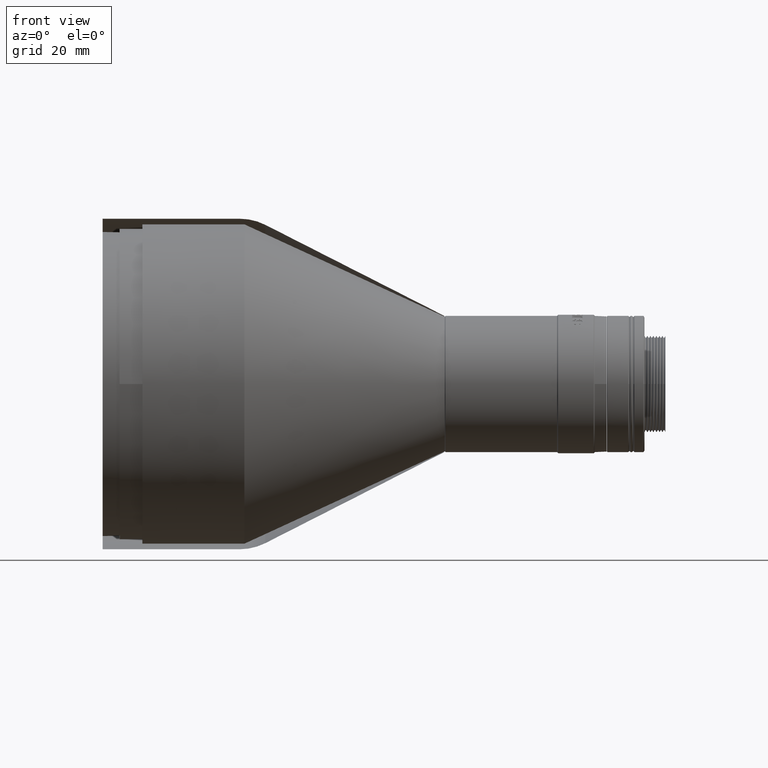
[diagram: clean part render]
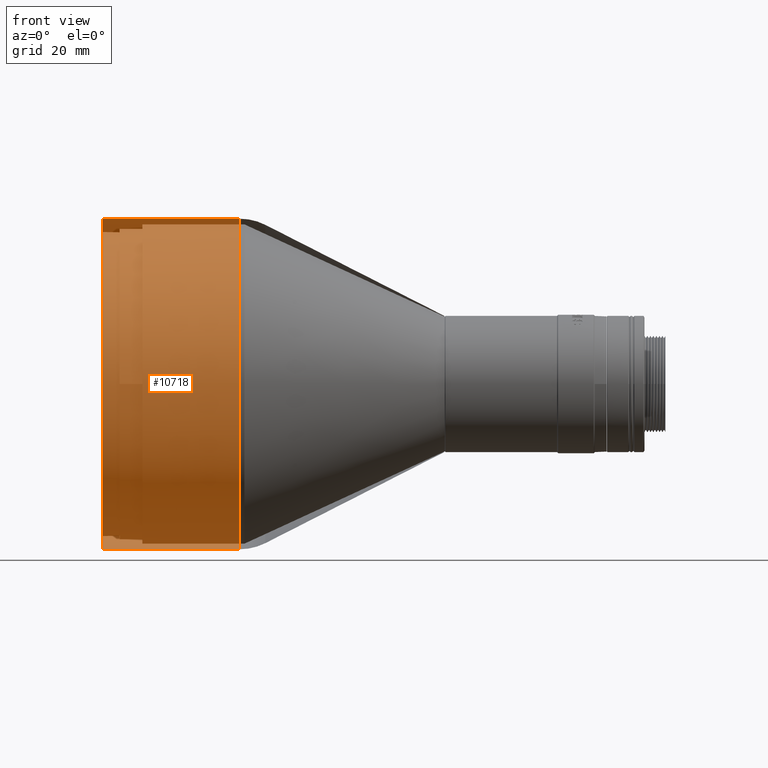
[diagram: same view with one face highlighted and labeled with its STEP entity id]
A machine part, front view. The second image highlights one B-rep face of the part: STEP entity #10718.
In plain terms, the highlighted cylindrical surface (partial cylindrical patch) has radius 43.7 mm, axis along (1, 0, 0).
Its self-contained STEP definition (entity closure, byte-faithful):
#214 = LINE ( 'NONE', #2862, #4738 ) ;
#236 = CARTESIAN_POINT ( 'NONE',  ( -24.05529752010535205, 5.880768976143530099E-15, -120.4114151907000121 ) ) ;
#286 = ORIENTED_EDGE ( 'NONE', *, *, #14643, .F. ) ;
#518 = CARTESIAN_POINT ( 'NONE',  ( -24.05529752010999545, -11.33937504425569820, -121.8107900419023792 ) ) ;
#638 = CARTESIAN_POINT ( 'NONE',  ( 12.17900414224189554, -11.33064824382261548, -206.4137427380765928 ) ) ;
#693 = CARTESIAN_POINT ( 'NONE',  ( -24.05529752010999900, -5.711366848817701403, -207.5315207750410025 ) ) ;
#730 = CARTESIAN_POINT ( 'NONE',  ( 12.17900414224190087, -2.860158311699255496, -120.4114151907000121 ) ) ;
#785 = CARTESIAN_POINT ( 'NONE',  ( -24.05529752010999545, -37.92920787937041638, -142.2185052878369333 ) ) ;
#822 = CARTESIAN_POINT ( 'NONE',  ( 12.17900414224190087, -39.27900037082232387, -144.7457074723630797 ) ) ;
#1125 = CARTESIAN_POINT ( 'NONE',  ( -24.05529752010999189, -19.37393471416325141, -124.8357870217162855 ) ) ;
#1423 = CARTESIAN_POINT ( 'NONE',  ( 12.17900414224189909, 2.018342305411405117E-14, -207.8114151905285212 ) ) ;
#1471 = CARTESIAN_POINT ( 'NONE',  ( 12.17900414224139993, 2.118348684342979799E-14, -120.4114151906715904 ) ) ;
#1918 = CARTESIAN_POINT ( 'NONE',  ( 12.17900414224189731, -34.74620323783448583, -137.4548612851465634 ) ) ;
#1983 = CARTESIAN_POINT ( 'NONE',  ( -24.05529752011000255, -34.74129082429909943, -190.7753801288074555 ) ) ;
#1987 = VECTOR ( 'NONE', #11299, 1000.000000000000000 ) ;
#2015 = CARTESIAN_POINT ( 'NONE',  ( 12.17900414224139993, 2.118348684342979799E-14, -120.4114151906715904 ) ) ;
#2017 = CARTESIAN_POINT ( 'NONE',  ( 12.17900414224189554, -19.36570771823690151, -203.3904155614223441 ) ) ;
#2159 = CARTESIAN_POINT ( 'NONE',  ( -24.05529752010999900, -5.711519099914903030, -120.6914068322514169 ) ) ;
#2191 = CARTESIAN_POINT ( 'NONE',  ( 12.17900414224189731, -42.30232754747663648, -152.7807669467773337 ) ) ;
#2208 = B_SPLINE_CURVE_WITH_KNOTS ( 'NONE', 3,
 ( #1471, #730, #15694, #9072, #6263, #17317, #17223, #3640, #13061, #15784, #1918, #11795, #822, #14602, #2191, #8894, #14428, #4821, #7713, #11971, #12972, #13237, #10337, #6358, #4914, #9156, #4733, #10521, #2017, #10429, #638, #11614, #3278, #17495 ),
 .UNSPECIFIED., .F., .F.,
 ( 4, 2, 2, 2, 2, 2, 2, 2, 2, 2, 2, 2, 2, 2, 2, 2, 4 ),
 ( 0.000000000000000000, 0.06249999999999997224, 0.1249999999999999445, 0.1874999999999998890, 0.2499999999999998335, 0.3124999999999998890, 0.3749999999999998890, 0.4374999999999998890, 0.5000000000000000000, 0.5625000000000001110, 0.6250000000000001110, 0.6875000000000002220, 0.7500000000000003331, 0.8125000000000003331, 0.8750000000000002220, 0.9375000000000001110, 1.000000000000000000 ),
 .UNSPECIFIED. ) ;
#2857 = AXIS2_PLACEMENT_3D ( 'NONE', #15907, #11835, #11563 ) ;
#2862 = CARTESIAN_POINT ( 'NONE',  ( -24.05529752010300015, 0.000000000000000000, -207.8114151905000142 ) ) ;
#3049 = VERTEX_POINT ( 'NONE', #2015 ) ;
#3278 = CARTESIAN_POINT ( 'NONE',  ( 12.17900414224189554, -2.860158311698975719, -207.8114151904999289 ) ) ;
#3429 = CARTESIAN_POINT ( 'NONE',  ( -24.05529752011000255, -11.33952729535290693, -206.4119431132052114 ) ) ;
#3513 = ORIENTED_EDGE ( 'NONE', *, *, #10590, .T. ) ;
#3516 = CARTESIAN_POINT ( 'NONE',  ( -24.05529752010999900, -14.07259727446913544, -122.6399722181820664 ) ) ;
#3604 = CARTESIAN_POINT ( 'NONE',  ( -24.05529752010999189, -21.89287342767497435, -126.1822618999030254 ) ) ;
#3640 = CARTESIAN_POINT ( 'NONE',  ( 12.17900414224190264, -26.65655390545356695, -129.3652119527656907 ) ) ;
#3940 = CARTESIAN_POINT ( 'NONE',  ( -24.05529752011000255, -42.30056075686302819, -152.7720529543382213 ) ) ;
#4269 = VERTEX_POINT ( 'NONE', #236 ) ;
#4678 = CYLINDRICAL_SURFACE ( 'NONE', #2857, 43.69999999990001527 ) ;
#4733 = CARTESIAN_POINT ( 'NONE',  ( 12.17900414224189909, -26.65655390545331116, -198.8576184284345914 ) ) ;
#4738 = VECTOR ( 'NONE', #6080, 1000.000000000000000 ) ;
#4788 = CARTESIAN_POINT ( 'NONE',  ( -24.05529752010999900, -19.37390959020993364, -203.3869827035695721 ) ) ;
#4821 = CARTESIAN_POINT ( 'NONE',  ( 12.17900414224189909, -43.69999999989998685, -166.9715735022992931 ) ) ;
#4914 = CARTESIAN_POINT ( 'NONE',  ( 12.17900414224190087, -32.92300367525085392, -192.9895441909120564 ) ) ;
#5307 = CARTESIAN_POINT ( 'NONE',  ( -24.05529752010999545, -42.30062514866843060, -175.4507902350222821 ) ) ;
#5960 = EDGE_CURVE ( 'NONE', #3049, #10634, #2208, .T. ) ;
#6057 = CARTESIAN_POINT ( 'NONE',  ( -24.05529752010999900, -43.42007275018317358, -158.3998832826912064 ) ) ;
#6080 = DIRECTION ( 'NONE',  ( 1.000000000000000000, 0.000000000000000000, 0.000000000000000000 ) ) ;
#6144 = CARTESIAN_POINT ( 'NONE',  ( -24.05529752011000255, -28.87186515683180232, -197.0407291332255966 ) ) ;
#6233 = CARTESIAN_POINT ( 'NONE',  ( -24.05529752010999900, -2.869551158122600754, -207.8114151905000426 ) ) ;
#6263 = CARTESIAN_POINT ( 'NONE',  ( 12.17900414224189554, -14.08082427039534679, -122.6433444201205845 ) ) ;
#6330 = CARTESIAN_POINT ( 'NONE',  ( -24.05529752011000255, -43.70003282653012633, -166.9804647415130887 ) ) ;
#6358 = CARTESIAN_POINT ( 'NONE',  ( 12.17900414224190264, -34.74620323783433662, -190.7679690960535765 ) ) ;
#6669 = CARTESIAN_POINT ( 'NONE',  ( -24.05529752011000610, -26.66396493812724344, -129.3701243662208071 ) ) ;
#6729 = ORIENTED_EDGE ( 'NONE', *, *, #5960, .T. ) ;
#7508 = CARTESIAN_POINT ( 'NONE',  ( -24.05529752010999900, -43.69996717326988289, -161.2423656396869660 ) ) ;
#7680 = CARTESIAN_POINT ( 'NONE',  ( -24.05529752011000610, -28.87181873293727818, -131.1821476718689894 ) ) ;
#7713 = CARTESIAN_POINT ( 'NONE',  ( 12.17900414224190087, -43.41830595956957239, -169.8316610909479323 ) ) ;
#7930 = B_SPLINE_CURVE_WITH_KNOTS ( 'NONE', 3,
 ( #13549, #13113, #2159, #518, #3516, #1125, #3604, #6669, #7680, #12189, #15840, #785, #16015, #13201, #3940, #6057, #7508, #6330, #17370, #5307, #14391, #11581, #10816, #1983, #13029, #6144, #11670, #17194, #4788, #10302, #3429, #693, #6233, #16808 ),
 .UNSPECIFIED., .F., .F.,
 ( 4, 2, 2, 2, 2, 2, 2, 2, 2, 2, 2, 2, 2, 2, 2, 2, 4 ),
 ( 0.000000000000000000, 0.06249999999999997224, 0.1249999999999999167, 0.1874999999999999722, 0.2500000000000000000, 0.3124999999999999445, 0.3749999999999999445, 0.4374999999999998890, 0.4999999999999998890, 0.5624999999999998890, 0.6249999999999997780, 0.6874999999999997780, 0.7499999999999997780, 0.8124999999999998890, 0.8749999999999998890, 0.9375000000000000000, 1.000000000000000000 ),
 .UNSPECIFIED. ) ;
#8135 = CARTESIAN_POINT ( 'NONE',  ( -24.05529752010649958, -2.675853256130844819E-15, -207.8114151905000142 ) ) ;
#8308 = LINE ( 'NONE', #13923, #1987 ) ;
#8399 = EDGE_LOOP ( 'NONE', ( #286, #3513, #6729, #14451 ) ) ;
#8894 = CARTESIAN_POINT ( 'NONE',  ( 12.17900414224190087, -43.41830595956962213, -158.3911692902523214 ) ) ;
#9072 = CARTESIAN_POINT ( 'NONE',  ( 12.17900414224189731, -11.33064824382288904, -121.8090876431234051 ) ) ;
#9156 = CARTESIAN_POINT ( 'NONE',  ( 12.17900414224190087, -28.87812900031172703, -197.0344188658510802 ) ) ;
#10302 = CARTESIAN_POINT ( 'NONE',  ( -24.05529752011000610, -14.07262239842246032, -205.5829188189321428 ) ) ;
#10337 = CARTESIAN_POINT ( 'NONE',  ( 12.17900414224190087, -37.92424087724168658, -186.0116996509487990 ) ) ;
#10429 = CARTESIAN_POINT ( 'NONE',  ( 12.17900414224189909, -14.08082427039510875, -205.5794859610794276 ) ) ;
#10521 = CARTESIAN_POINT ( 'NONE',  ( 12.17900414224189909, -21.90028446034849452, -202.0356560678418134 ) ) ;
#10545 = VERTEX_POINT ( 'NONE', #8135 ) ;
#10590 = EDGE_CURVE ( 'NONE', #4269, #3049, #8308, .T. ) ;
#10634 = VERTEX_POINT ( 'NONE', #1423 ) ;
#10718 = ADVANCED_FACE ( 'NONE', ( #13277 ), #4678, .F. ) ;
#10816 = CARTESIAN_POINT ( 'NONE',  ( -24.05529752010999900, -37.92915329077710140, -186.0042886181946926 ) ) ;
#11299 = DIRECTION ( 'NONE',  ( 1.000000000000000000, 0.000000000000000000, 0.000000000000000000 ) ) ;
#11563 = DIRECTION ( 'NONE',  ( 0.000000000000000000, 0.000000000000000000, -1.000000000000000000 ) ) ;
#11581 = CARTESIAN_POINT ( 'NONE',  ( -24.05529752010999545, -39.27562816873545160, -183.4853499050248615 ) ) ;
#11614 = CARTESIAN_POINT ( 'NONE',  ( 12.17900414224190087, -5.720245900347634915, -207.5297211501695926 ) ) ;
#11670 = CARTESIAN_POINT ( 'NONE',  ( -24.05529752011000255, -26.66392846328778177, -198.8526514261395732 ) ) ;
#11795 = CARTESIAN_POINT ( 'NONE',  ( 12.17900414224190087, -37.92424087724180026, -142.2111307302514547 ) ) ;
#11835 = DIRECTION ( 'NONE',  ( 1.000000000000000000, 0.000000000000000000, 0.000000000000000000 ) ) ;
#11971 = CARTESIAN_POINT ( 'NONE',  ( 12.17900414224189909, -42.30232754747655122, -175.4420634344229768 ) ) ;
#12189 = CARTESIAN_POINT ( 'NONE',  ( -24.05529752011000255, -32.92931394262553368, -135.2395500337681824 ) ) ;
#12972 = CARTESIAN_POINT ( 'NONE',  ( 12.17900414224190087, -41.46807077047937895, -178.1922394609954381 ) ) ;
#13029 = CARTESIAN_POINT ( 'NONE',  ( -24.05529752011000255, -32.92926751873100244, -192.9832339235372274 ) ) ;
#13061 = CARTESIAN_POINT ( 'NONE',  ( 12.17900414224189909, -28.87812900031195440, -131.1884115153491166 ) ) ;
#13113 = CARTESIAN_POINT ( 'NONE',  ( -24.05529752011000610, -2.869214591415731430, -120.4114151907000121 ) ) ;
#13201 = CARTESIAN_POINT ( 'NONE',  ( -24.05529752011000610, -41.47150362827374437, -150.0387927918842763 ) ) ;
#13237 = CARTESIAN_POINT ( 'NONE',  ( 12.17900414224190264, -39.27900037082218887, -183.4771229088372877 ) ) ;
#13277 = FACE_OUTER_BOUND ( 'NONE', #8399, .T. ) ;
#13549 = CARTESIAN_POINT ( 'NONE',  ( -24.05529752010535205, 5.880768976143530099E-15, -120.4114151907000121 ) ) ;
#13923 = CARTESIAN_POINT ( 'NONE',  ( -24.05529752010300015, 5.351706512261687271E-15, -120.4114151906999979 ) ) ;
#14391 = CARTESIAN_POINT ( 'NONE',  ( -24.05529752011000255, -41.47144297256615175, -178.1840124648075516 ) ) ;
#14428 = CARTESIAN_POINT ( 'NONE',  ( 12.17900414224189909, -43.69999999990001527, -161.2512568789009606 ) ) ;
#14451 = ORIENTED_EDGE ( 'NONE', *, *, #16002, .F. ) ;
#14602 = CARTESIAN_POINT ( 'NONE',  ( 12.17900414224189731, -41.46807077047945000, -150.0305909202048440 ) ) ;
#14643 = EDGE_CURVE ( 'NONE', #4269, #10545, #7930, .T. ) ;
#15694 = CARTESIAN_POINT ( 'NONE',  ( 12.17900414224189909, -5.720245900347900481, -120.6931092310304194 ) ) ;
#15784 = CARTESIAN_POINT ( 'NONE',  ( 12.17900414224189909, -32.92300367525103866, -135.2332861902881405 ) ) ;
#15840 = CARTESIAN_POINT ( 'NONE',  ( -24.05529752011000255, -34.74123623570577735, -137.4474867275610848 ) ) ;
#15907 = CARTESIAN_POINT ( 'NONE',  ( -24.05529752010300015, 0.000000000000000000, -164.1114151905999847 ) ) ;
#16002 = EDGE_CURVE ( 'NONE', #10545, #10634, #214, .T. ) ;
#16015 = CARTESIAN_POINT ( 'NONE',  ( -24.05529752011000255, -39.27556751302787319, -144.7375056006833063 ) ) ;
#16808 = CARTESIAN_POINT ( 'NONE',  ( -24.05529752010649958, -2.675853256130844819E-15, -207.8114151905000142 ) ) ;
#17194 = CARTESIAN_POINT ( 'NONE',  ( -24.05529752010999900, -21.89290990251443958, -202.0406230701366894 ) ) ;
#17223 = CARTESIAN_POINT ( 'NONE',  ( 12.17900414224189909, -21.90028446034875742, -126.1871743133583266 ) ) ;
#17317 = CARTESIAN_POINT ( 'NONE',  ( 12.17900414224190264, -19.36570771823713599, -124.8324148197778243 ) ) ;
#17370 = CARTESIAN_POINT ( 'NONE',  ( -24.05529752011000255, -43.42000835837777828, -169.8229342903483143 ) ) ;
#17495 = CARTESIAN_POINT ( 'NONE',  ( 12.17900414224189909, 2.018342305411405117E-14, -207.8114151905285212 ) ) ;